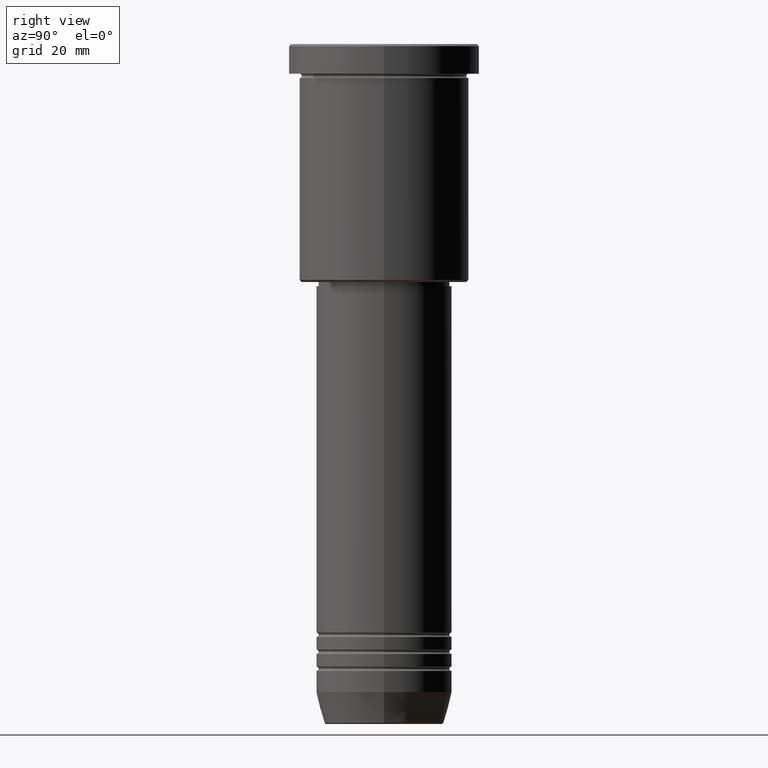
[diagram: clean part render]
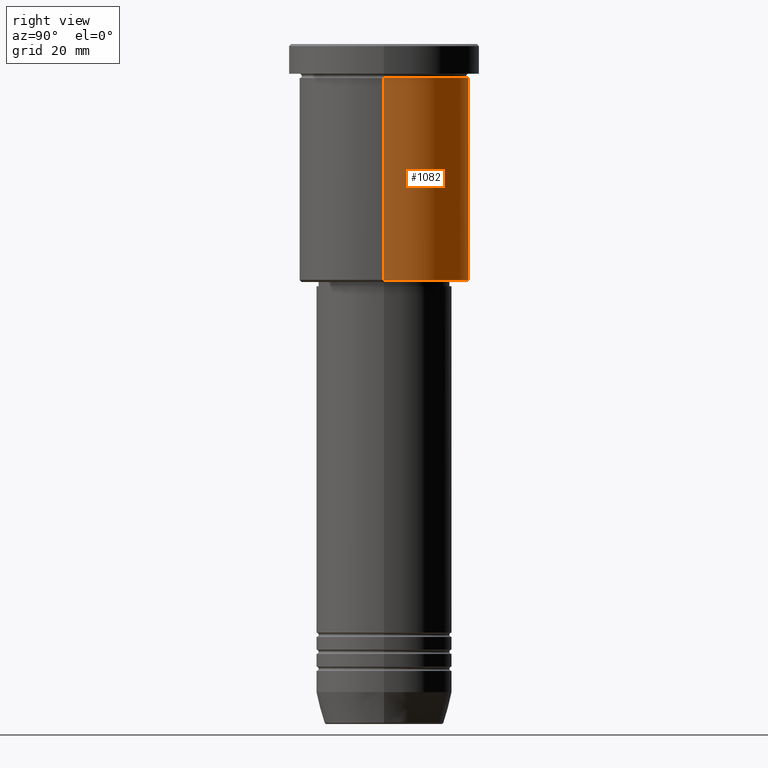
[diagram: same view with one face highlighted and labeled with its STEP entity id]
A machine part, right view. The second image highlights one B-rep face of the part: STEP entity #1082.
In plain terms, the highlighted cylindrical surface (partial cylindrical patch) has radius 20 mm, axis along (-0, -0, 1).
Its self-contained STEP definition (entity closure, byte-faithful):
#1 = DIRECTION ( 'NONE',  ( -0.000000000000000000, -0.000000000000000000, 1.000000000000000000 ) ) ;
#6 = CARTESIAN_POINT ( 'NONE',  ( -20.00000000000000355, 2.449293598294706907E-15, 0.000000000000000000 ) ) ;
#88 = CYLINDRICAL_SURFACE ( 'NONE', #168, 20.00000000000000355 ) ;
#92 = CIRCLE ( 'NONE', #614, 20.00000000000000355 ) ;
#125 = VECTOR ( 'NONE', #171, 1000.000000000000000 ) ;
#135 = EDGE_CURVE ( 'NONE', #746, #557, #825, .T. ) ;
#143 = DIRECTION ( 'NONE',  ( -0.000000000000000000, -0.000000000000000000, 1.000000000000000000 ) ) ;
#168 = AXIS2_PLACEMENT_3D ( 'NONE', #821, #813, #429 ) ;
#171 = DIRECTION ( 'NONE',  ( -0.000000000000000000, -0.000000000000000000, 1.000000000000000000 ) ) ;
#236 = EDGE_CURVE ( 'NONE', #604, #749, #272, .T. ) ;
#263 = DIRECTION ( 'NONE',  ( -1.000000000000000000, 0.000000000000000000, 0.000000000000000000 ) ) ;
#272 = LINE ( 'NONE', #725, #1096 ) ;
#307 = CARTESIAN_POINT ( 'NONE',  ( -20.00000000000000355, 2.449293598294706907E-15, -55.49999999999998579 ) ) ;
#311 = ORIENTED_EDGE ( 'NONE', *, *, #556, .T. ) ;
#363 = FACE_OUTER_BOUND ( 'NONE', #1054, .T. ) ;
#429 = DIRECTION ( 'NONE',  ( 1.000000000000000000, 0.000000000000000000, 0.000000000000000000 ) ) ;
#525 = CARTESIAN_POINT ( 'NONE',  ( -20.00000000000000000, 2.449293598294706513E-15, -7.999999999999994671 ) ) ;
#556 = EDGE_CURVE ( 'NONE', #604, #746, #92, .T. ) ;
#557 = VERTEX_POINT ( 'NONE', #525 ) ;
#604 = VERTEX_POINT ( 'NONE', #996 ) ;
#614 = AXIS2_PLACEMENT_3D ( 'NONE', #960, #143, #263 ) ;
#619 = ORIENTED_EDGE ( 'NONE', *, *, #763, .F. ) ;
#636 = CIRCLE ( 'NONE', #837, 20.00000000000000000 ) ;
#725 = CARTESIAN_POINT ( 'NONE',  ( 20.00000000000000355, 0.000000000000000000, 0.000000000000000000 ) ) ;
#746 = VERTEX_POINT ( 'NONE', #307 ) ;
#749 = VERTEX_POINT ( 'NONE', #1132 ) ;
#763 = EDGE_CURVE ( 'NONE', #749, #557, #636, .T. ) ;
#773 = DIRECTION ( 'NONE',  ( -0.000000000000000000, -0.000000000000000000, 1.000000000000000000 ) ) ;
#813 = DIRECTION ( 'NONE',  ( -0.000000000000000000, -0.000000000000000000, 1.000000000000000000 ) ) ;
#821 = CARTESIAN_POINT ( 'NONE',  ( 0.000000000000000000, 0.000000000000000000, 0.000000000000000000 ) ) ;
#825 = LINE ( 'NONE', #6, #125 ) ;
#837 = AXIS2_PLACEMENT_3D ( 'NONE', #1036, #773, #1015 ) ;
#876 = ORIENTED_EDGE ( 'NONE', *, *, #236, .F. ) ;
#958 = ORIENTED_EDGE ( 'NONE', *, *, #135, .T. ) ;
#960 = CARTESIAN_POINT ( 'NONE',  ( 0.000000000000000000, 0.000000000000000000, -55.49999999999998579 ) ) ;
#996 = CARTESIAN_POINT ( 'NONE',  ( 20.00000000000000355, 0.000000000000000000, -55.49999999999998579 ) ) ;
#1015 = DIRECTION ( 'NONE',  ( 1.000000000000000000, 0.000000000000000000, 0.000000000000000000 ) ) ;
#1036 = CARTESIAN_POINT ( 'NONE',  ( 0.000000000000000000, 0.000000000000000000, -7.999999999999994671 ) ) ;
#1054 = EDGE_LOOP ( 'NONE', ( #311, #958, #619, #876 ) ) ;
#1082 = ADVANCED_FACE ( 'NONE', ( #363 ), #88, .T. ) ;
#1096 = VECTOR ( 'NONE', #1, 1000.000000000000000 ) ;
#1132 = CARTESIAN_POINT ( 'NONE',  ( 20.00000000000000000, 0.000000000000000000, -7.999999999999994671 ) ) ;